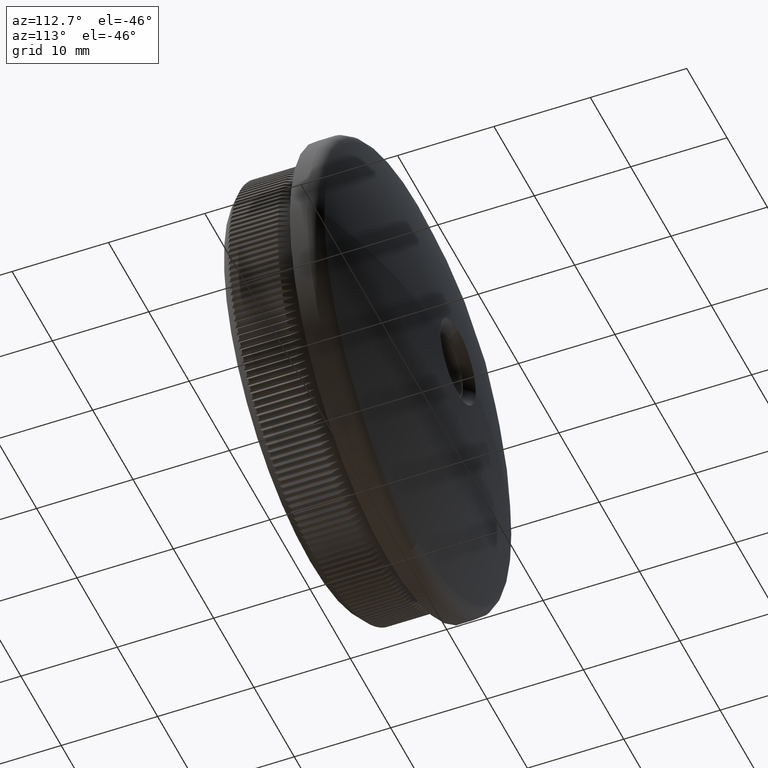
[diagram: clean part render]
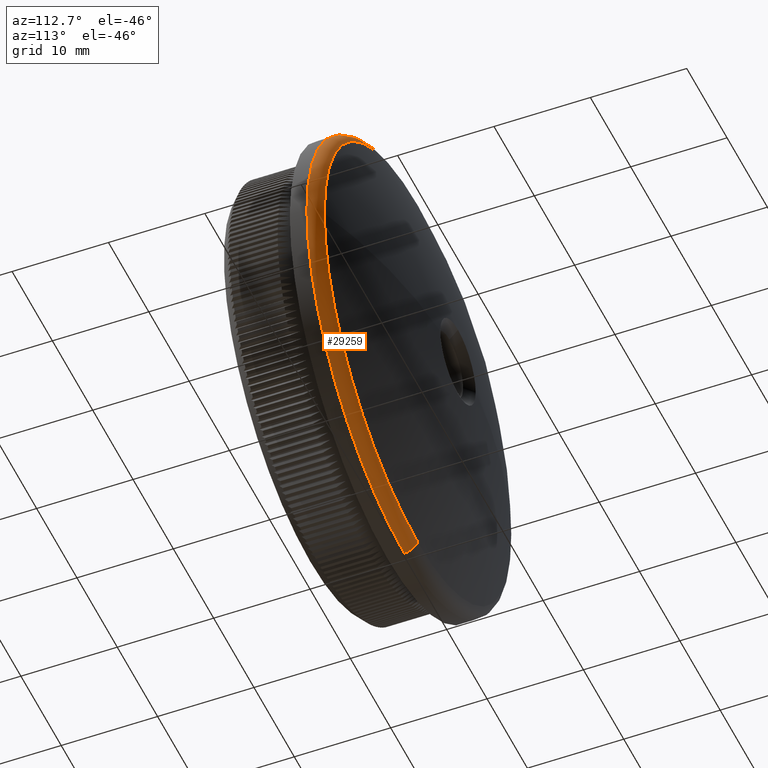
[diagram: same view with one face highlighted and labeled with its STEP entity id]
A machine part, auxiliary view. The second image highlights one B-rep face of the part: STEP entity #29259.
In plain terms, the highlighted toroidal blend (fillet) surface has major radius 22.65 mm and minor (blend) radius 1.5 mm.
Its self-contained STEP definition (entity closure, byte-faithful):
#271 = FACE_OUTER_BOUND ( 'NONE', #6205, .T. ) ;
#583 = DIRECTION ( 'NONE',  ( -0.0000000000000000000, -1.000000000000000000, -0.0000000000000000000 ) ) ;
#815 = CIRCLE ( 'NONE', #17840, 23.19018648117216600 ) ;
#1741 = CARTESIAN_POINT ( 'NONE',  ( 23.19018648117216600, 11.17937736945556400, 0.0000000000000000000 ) ) ;
#1928 = DIRECTION ( 'NONE',  ( 0.0000000000000000000, 0.0000000000000000000, -1.000000000000000000 ) ) ;
#3157 = DIRECTION ( 'NONE',  ( 0.0000000000000000000, 0.0000000000000000000, -1.000000000000000000 ) ) ;
#3301 = CARTESIAN_POINT ( 'NONE',  ( 2.898750392260314800E-015, 11.17937736945556700, 23.19018648117216600 ) ) ;
#3882 = VERTEX_POINT ( 'NONE', #9230 ) ;
#3921 = EDGE_CURVE ( 'NONE', #32610, #3882, #27763, .T. ) ;
#3997 = DIRECTION ( 'NONE',  ( 0.0000000000000000000, 0.0000000000000000000, -1.000000000000000000 ) ) ;
#4641 = DIRECTION ( 'NONE',  ( -1.000000000000000000, 0.0000000000000000000, 0.0000000000000000000 ) ) ;
#5216 = AXIS2_PLACEMENT_3D ( 'NONE', #24935, #4641, #24712 ) ;
#5636 = AXIS2_PLACEMENT_3D ( 'NONE', #18991, #16352, #8824 ) ;
#6205 = EDGE_LOOP ( 'NONE', ( #7440, #19188, #27641, #23643, #26726 ) ) ;
#7440 = ORIENTED_EDGE ( 'NONE', *, *, #24331, .F. ) ;
#8519 = CIRCLE ( 'NONE', #5216, 1.500000000000001300 ) ;
#8524 = CARTESIAN_POINT ( 'NONE',  ( 0.0000000000000000000, 9.780020886796899400, -24.15000000000000200 ) ) ;
#8697 = EDGE_CURVE ( 'NONE', #9296, #32610, #8519, .T. ) ;
#8824 = DIRECTION ( 'NONE',  ( -1.224646799147352000E-016, 0.0000000000000000000, -1.000000000000000000 ) ) ;
#9230 = CARTESIAN_POINT ( 'NONE',  ( 2.957522019940858300E-015, 9.780020886796899400, 24.15000000000000200 ) ) ;
#9296 = VERTEX_POINT ( 'NONE', #22873 ) ;
#9408 = VERTEX_POINT ( 'NONE', #3301 ) ;
#9728 = DIRECTION ( 'NONE',  ( 0.0000000000000000000, 1.000000000000000000, 0.0000000000000000000 ) ) ;
#9956 = EDGE_CURVE ( 'NONE', #9408, #3882, #17985, .T. ) ;
#11647 = CARTESIAN_POINT ( 'NONE',  ( 0.0000000000000000000, 9.780020886796899400, 0.0000000000000000000 ) ) ;
#13225 = CARTESIAN_POINT ( 'NONE',  ( 0.0000000000000000000, 9.780020886796899400, 0.0000000000000000000 ) ) ;
#13495 = AXIS2_PLACEMENT_3D ( 'NONE', #24566, #9728, #1928 ) ;
#14336 = EDGE_CURVE ( 'NONE', #16812, #9296, #815, .T. ) ;
#15376 = CARTESIAN_POINT ( 'NONE',  ( 0.0000000000000000000, 11.17937736945556700, 0.0000000000000000000 ) ) ;
#16352 = DIRECTION ( 'NONE',  ( 1.000000000000000000, 0.0000000000000000000, -1.224646799147353200E-016 ) ) ;
#16812 = VERTEX_POINT ( 'NONE', #1741 ) ;
#17840 = AXIS2_PLACEMENT_3D ( 'NONE', #15376, #23259, #30844 ) ;
#17985 = CIRCLE ( 'NONE', #5636, 1.500000000000001300 ) ;
#18991 = CARTESIAN_POINT ( 'NONE',  ( 2.773825000068754800E-015, 9.780020886796899400, 22.64999999999999900 ) ) ;
#19188 = ORIENTED_EDGE ( 'NONE', *, *, #9956, .T. ) ;
#19699 = TOROIDAL_SURFACE ( 'NONE', #31757, 22.64999999999999900, 1.500000000000000000 ) ;
#22873 = CARTESIAN_POINT ( 'NONE',  ( 0.0000000000000000000, 11.17937736945556700, -23.19018648117216600 ) ) ;
#23259 = DIRECTION ( 'NONE',  ( 0.0000000000000000000, 1.000000000000000000, 0.0000000000000000000 ) ) ;
#23643 = ORIENTED_EDGE ( 'NONE', *, *, #8697, .F. ) ;
#24331 = EDGE_CURVE ( 'NONE', #9408, #16812, #32186, .T. ) ;
#24566 = CARTESIAN_POINT ( 'NONE',  ( 0.0000000000000000000, 11.17937736945556700, 0.0000000000000000000 ) ) ;
#24712 = DIRECTION ( 'NONE',  ( 0.0000000000000000000, 0.0000000000000000000, 1.000000000000000000 ) ) ;
#24935 = CARTESIAN_POINT ( 'NONE',  ( 0.0000000000000000000, 9.780020886796899400, -22.64999999999999900 ) ) ;
#26726 = ORIENTED_EDGE ( 'NONE', *, *, #14336, .F. ) ;
#27641 = ORIENTED_EDGE ( 'NONE', *, *, #3921, .F. ) ;
#27763 = CIRCLE ( 'NONE', #32242, 24.15000000000000200 ) ;
#29259 = ADVANCED_FACE ( 'NONE', ( #271 ), #19699, .T. ) ;
#29358 = DIRECTION ( 'NONE',  ( -0.0000000000000000000, -1.000000000000000000, -0.0000000000000000000 ) ) ;
#30844 = DIRECTION ( 'NONE',  ( 0.0000000000000000000, 0.0000000000000000000, -1.000000000000000000 ) ) ;
#31757 = AXIS2_PLACEMENT_3D ( 'NONE', #13225, #583, #3157 ) ;
#32186 = CIRCLE ( 'NONE', #13495, 23.19018648117216600 ) ;
#32242 = AXIS2_PLACEMENT_3D ( 'NONE', #11647, #29358, #3997 ) ;
#32610 = VERTEX_POINT ( 'NONE', #8524 ) ;